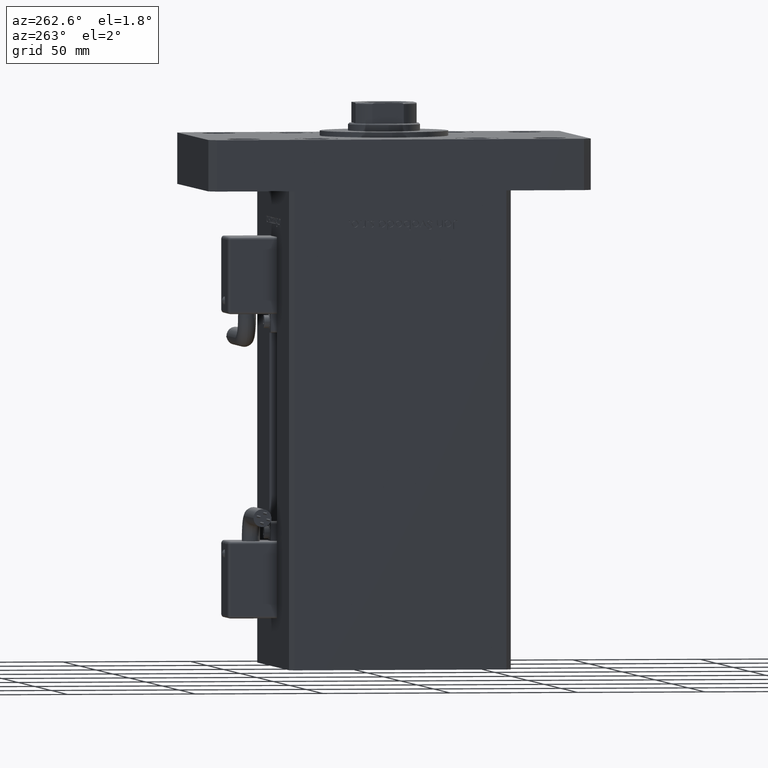
[diagram: clean part render]
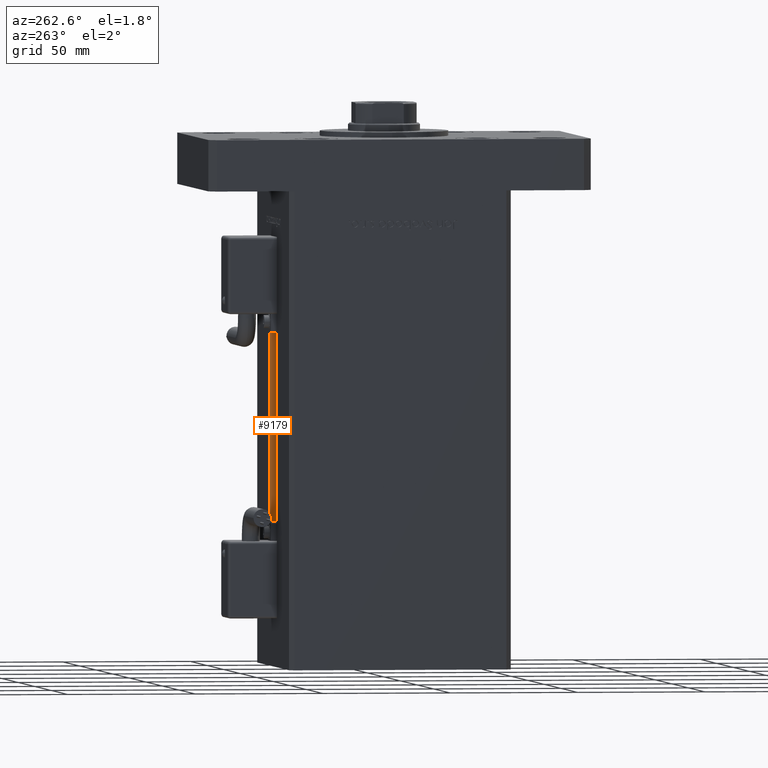
[diagram: same view with one face highlighted and labeled with its STEP entity id]
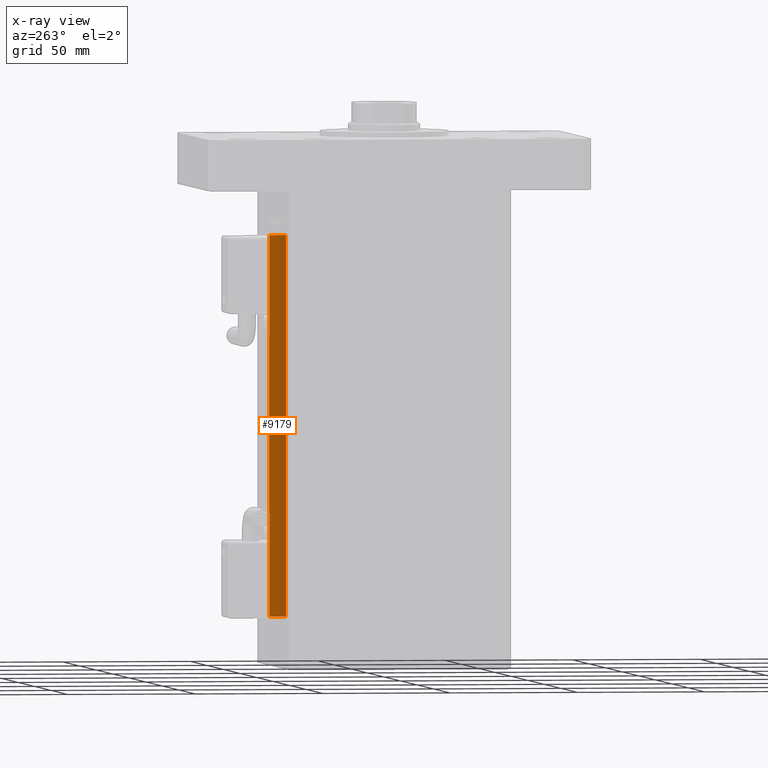
[diagram: x-ray of the same camera — body ghosted, the highlighted face saturated]
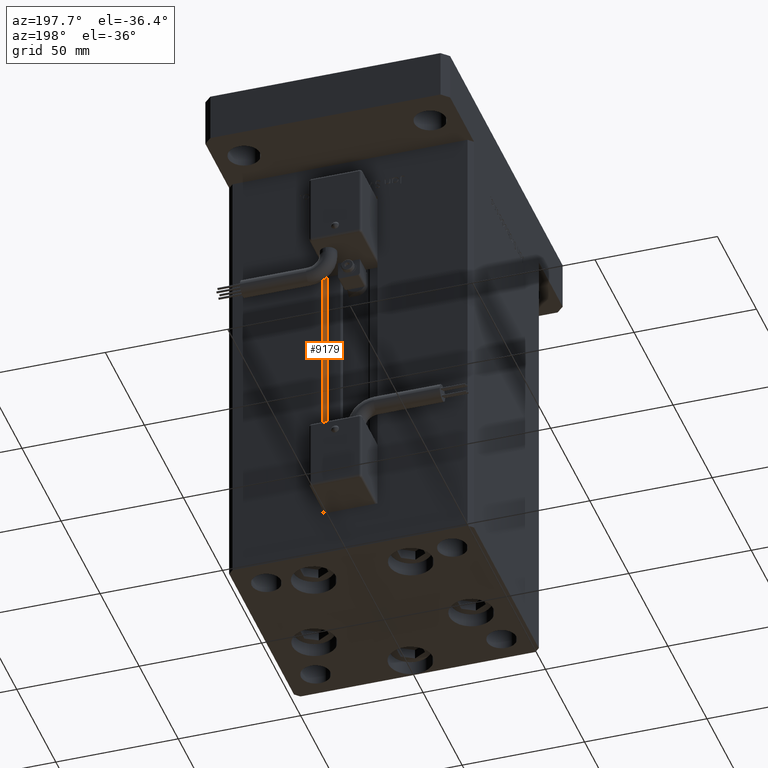
[diagram: same view with one face highlighted and labeled with its STEP entity id]
A machine part, auxiliary view. The second image highlights one B-rep face of the part: STEP entity #9179.
The next image is the same camera in x-ray: the body ghosted, the highlighted face saturated — about 40% of this face is hidden behind the body in this view.
A second angle (auxiliary view) of the same face is appended — the face is thin or edge-on in the first view.
In plain terms, the highlighted planar face has unit normal (1, 0, 0).
Its self-contained STEP definition (entity closure, byte-faithful):
#448 = AXIS2_PLACEMENT_3D ( 'NONE', #56277, #52240, #9043 ) ;
#2382 = CARTESIAN_POINT ( 'NONE',  ( 11.24999999999999822, 43.50000000000000000, 0.000000000000000000 ) ) ;
#2849 = CARTESIAN_POINT ( 'NONE',  ( 11.24999999999999822, 43.50000000000000000, 0.000000000000000000 ) ) ;
#4220 = CARTESIAN_POINT ( 'NONE',  ( 11.24999999999999822, 0.000000000000000000, 148.5000000000000000 ) ) ;
#6914 = VECTOR ( 'NONE', #21806, 1000.000000000000000 ) ;
#6999 = EDGE_CURVE ( 'NONE', #26966, #45658, #19867, .T. ) ;
#9043 = DIRECTION ( 'NONE',  ( 0.000000000000000000, 0.000000000000000000, -1.000000000000000000 ) ) ;
#9179 = ADVANCED_FACE ( 'NONE', ( #21430 ), #16839, .F. ) ;
#9981 = CARTESIAN_POINT ( 'NONE',  ( 11.24999999999999822, 36.99999999999999289, 148.5000000000000000 ) ) ;
#10656 = DIRECTION ( 'NONE',  ( -0.000000000000000000, -0.000000000000000000, 1.000000000000000000 ) ) ;
#11236 = EDGE_CURVE ( 'NONE', #45658, #37019, #43685, .T. ) ;
#13057 = ORIENTED_EDGE ( 'NONE', *, *, #14851, .T. ) ;
#13364 = VERTEX_POINT ( 'NONE', #24044 ) ;
#13581 = DIRECTION ( 'NONE',  ( -0.000000000000000000, -0.000000000000000000, 1.000000000000000000 ) ) ;
#14851 = EDGE_CURVE ( 'NONE', #13364, #37019, #22231, .T. ) ;
#16839 = PLANE ( 'NONE',  #448 ) ;
#17953 = ORIENTED_EDGE ( 'NONE', *, *, #33298, .F. ) ;
#19867 = LINE ( 'NONE', #2849, #41870 ) ;
#21430 = FACE_OUTER_BOUND ( 'NONE', #52608, .T. ) ;
#21806 = DIRECTION ( 'NONE',  ( -0.000000000000000000, -1.000000000000000000, 0.000000000000000000 ) ) ;
#22231 = LINE ( 'NONE', #44104, #38321 ) ;
#24044 = CARTESIAN_POINT ( 'NONE',  ( 11.24999999999999822, 36.99999999999999289, 0.000000000000000000 ) ) ;
#26966 = VERTEX_POINT ( 'NONE', #2382 ) ;
#27386 = ORIENTED_EDGE ( 'NONE', *, *, #11236, .F. ) ;
#33298 = EDGE_CURVE ( 'NONE', #13364, #26966, #49861, .T. ) ;
#36299 = CARTESIAN_POINT ( 'NONE',  ( 11.24999999999999822, 36.99999999999999289, 0.000000000000000000 ) ) ;
#37019 = VERTEX_POINT ( 'NONE', #9981 ) ;
#38321 = VECTOR ( 'NONE', #13581, 1000.000000000000000 ) ;
#41870 = VECTOR ( 'NONE', #10656, 1000.000000000000000 ) ;
#42305 = CARTESIAN_POINT ( 'NONE',  ( 11.24999999999999112, 43.50000000000000000, 148.5000000000000000 ) ) ;
#43685 = LINE ( 'NONE', #4220, #6914 ) ;
#44104 = CARTESIAN_POINT ( 'NONE',  ( 11.24999999999999822, 36.99999999999999289, 0.000000000000000000 ) ) ;
#44981 = ORIENTED_EDGE ( 'NONE', *, *, #6999, .F. ) ;
#45658 = VERTEX_POINT ( 'NONE', #42305 ) ;
#49861 = LINE ( 'NONE', #36299, #54498 ) ;
#52240 = DIRECTION ( 'NONE',  ( 1.000000000000000000, -0.000000000000000000, 0.000000000000000000 ) ) ;
#52608 = EDGE_LOOP ( 'NONE', ( #44981, #17953, #13057, #27386 ) ) ;
#54498 = VECTOR ( 'NONE', #54724, 1000.000000000000000 ) ;
#54724 = DIRECTION ( 'NONE',  ( 0.000000000000000000, 1.000000000000000000, 0.000000000000000000 ) ) ;
#56277 = CARTESIAN_POINT ( 'NONE',  ( 11.24999999999999822, 36.99999999999999289, 0.000000000000000000 ) ) ;